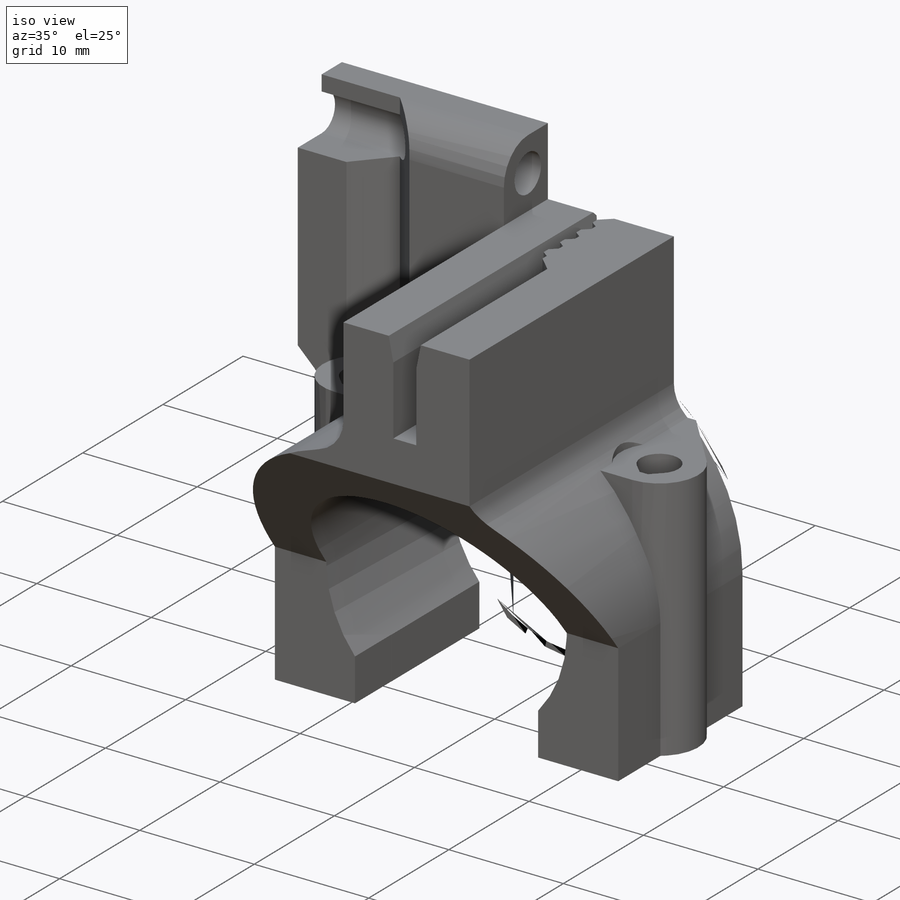
[diagram: iso view]
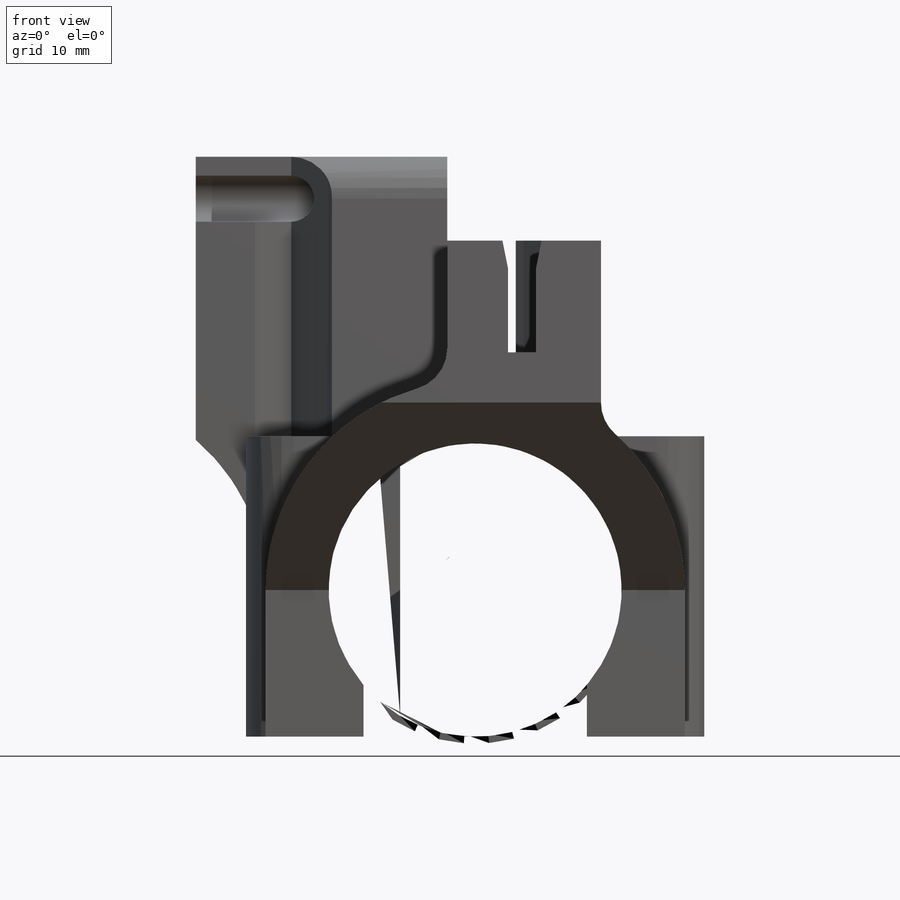
[diagram: front view]
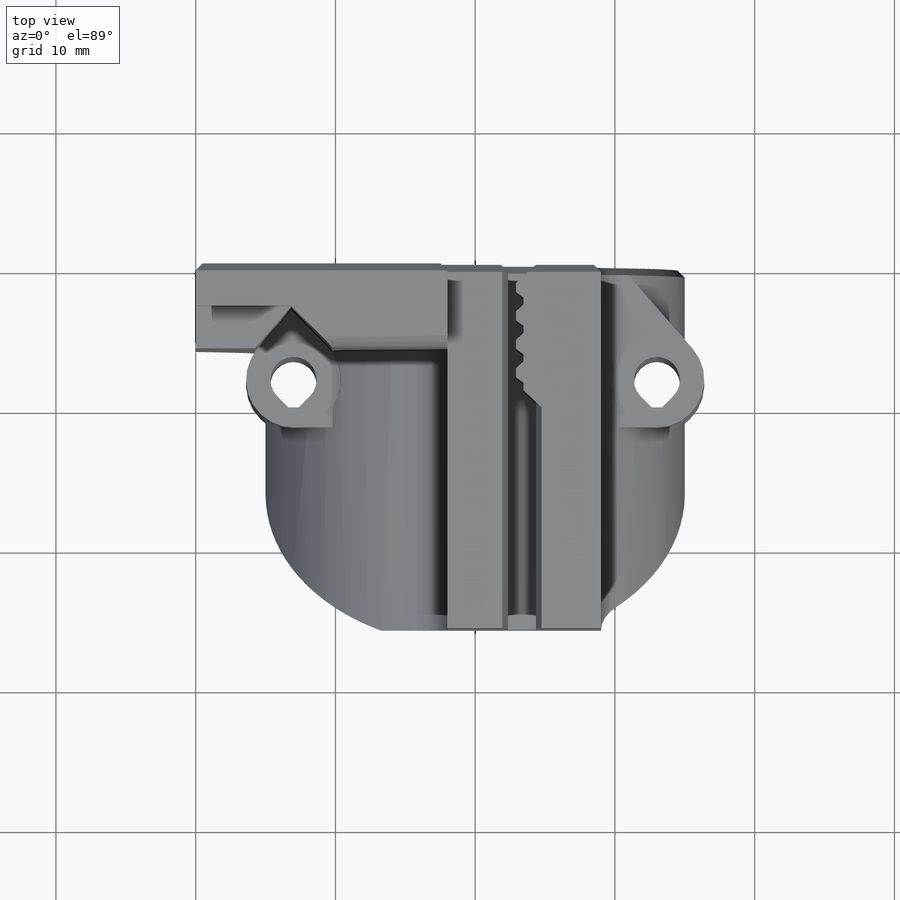
[diagram: top view]
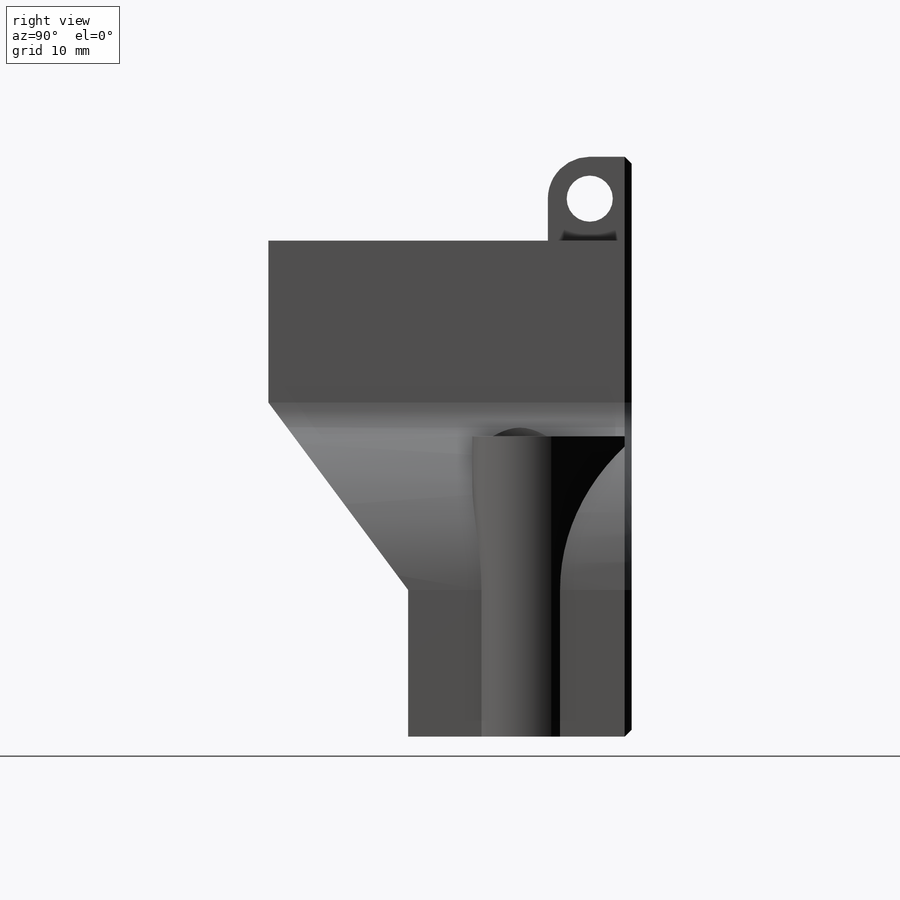
[diagram: right view]
SOLIDWORKS PART (.sldprt)
format: sldprt  version: not decoded by parser v0  size: 535,552 bytes
history: native  units: mm
features: sketch x11, cut_extrude x8, extrude x3, chamfer x2, material x1, mirror x1, fillet x1 (+13 scaffold rows collapsed)
feature tree (40):
  scaffold x13  (default folders/planes/origin — collapsed)
  material  "Custom Plastic"
  sketch  "Sketch1"  dims[c1.D1=16.0mm c1.D4=8.0mm c1.D5=2.0mm c1.D6=21.0mm c1.D7=21.0mm c2.D5=1.0mm c2.D3=3.0mm c2.D8=3.0mm c3.D3=8.0mm c3.D4=3.0mm c3.D5=~5.012648mm c4.D4=3.0mm c4.D7=4.5mm c4.D1=16.0mm c5.D4=25.0mm c5.D5=2.0mm c5.D9=9.0mm c5.D2=6.0mm]
  extrude  "Boss-Extrude1"  Depth=26mm
  sketch  "Sketch4"  dims[c1.D1=3.4mm c1.D2=1.0mm c1.D3=~3.782907mm c2.D3=45.0deg c2.D4=8.0mm c2.D5=16.0mm c2.D2=13.0mm c3.D4=8.0mm c3.D3=0.5mm]
  extrude  "Boss-Extrude2"  Depth=21.5mm
  sketch  "Sketch2"  dims[D1=3.3mm D2=1.0mm]
  cut_extrude  "Cut-Extrude1"  [1 undecoded]
  mirror  "Mirror1"
  sketch  "Sketch5"  dims[c1.D1=0.32mm c1.D2=0.32mm c1.D3=~0.946443mm c2.D2=0.32mm]
  cut_extrude  "Cut-Extrude3"  [1 undecoded]
  sketch  "Sketch7"  dims[c1.D1=2.0mm c1.D2=0.5mm c1.D3=0.5mm c1.D4=2.032mm c2.D1=1.5mm c2.D5=2.0mm c2.D6=0.5mm c3.D6=150.0deg c3.D7=2.0mm c3.D8=3.2mm c3.D1=0.6mm c3.D2=0.55mm c3.D3=2.032mm c3.D4=1.1mm c3.D5=2.0mm]
  cut_extrude  "Cut-Extrude4"  Depth=8mm
  sketch  "Sketch13"  dims[D1=6.0mm D2=5.0mm]
  extrude  "Boss-Extrude4"  Depth=6mm
  sketch  "Sketch9"  dims[D1=16.0mm]
  cut_extrude  "Cut-Extrude5"  [1 undecoded]
  sketch  "Sketch10"  dims[c1.D1=6.8mm c1.D2=1.0mm c2.D1=3.4mm]
  cut_extrude  "Cut-Extrude6"  [1 undecoded]
  chamfer  "Chamfer1"  Distance=0.4mm
  fillet  "Fillet1"  Radius=3mm
  sketch  "Sketch14"  dims[D1=3.3mm]
  cut_extrude  "Cut-Extrude8"  [1 undecoded]
  sketch  "Sketch15"
  cut_extrude  "Cut-Extrude9"  [1 undecoded]
  chamfer  "Chamfer2"  Distance=0.5mm Angle=45deg
  sketch  "Sketch16"
  cut_extrude  "Cut-Extrude11"  [1 undecoded]
decode coverage: 16 of 26 modeling features carry decoded parameters
note: ~ marks probable driven/reference dimensions
note: 7 parameter values undecoded
summary: no parameter record found for 7 features
note: suppression state not decoded; provenance and decode notes live in map.json
